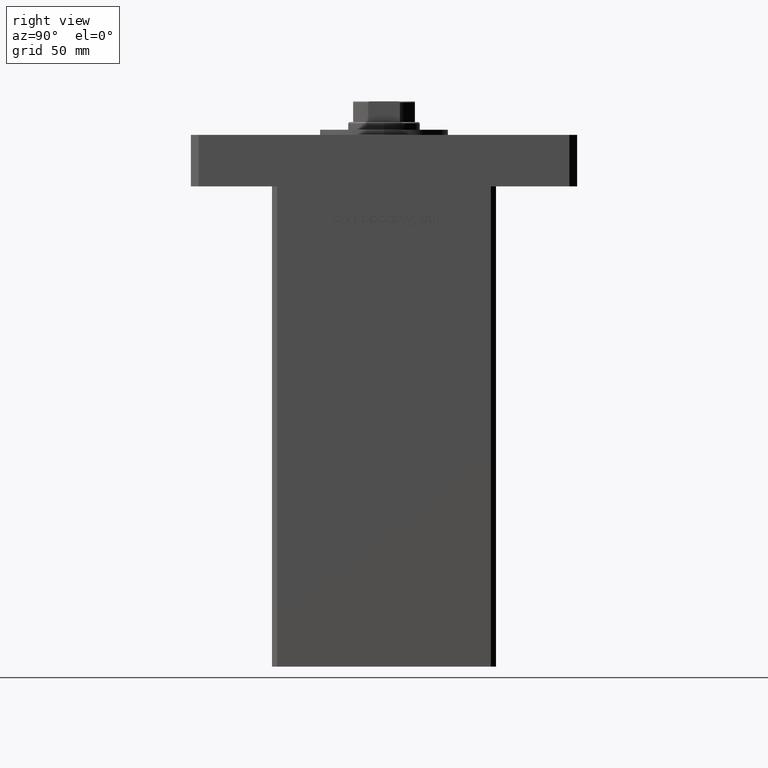
[diagram: clean part render]
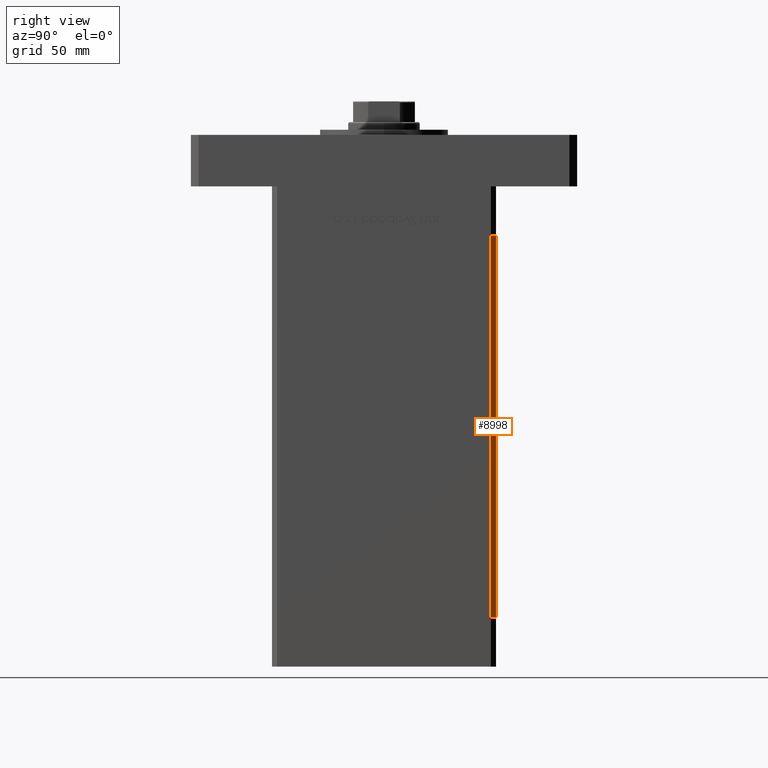
[diagram: same view with one face highlighted and labeled with its STEP entity id]
A machine part, right view. The second image highlights one B-rep face of the part: STEP entity #8998.
In plain terms, the highlighted planar face has unit normal (0.7071, 0.7071, 0).
Its self-contained STEP definition (entity closure, byte-faithful):
#75 = CARTESIAN_POINT ( 'NONE',  ( 50.00000000000001421, 41.49999999999999289, 148.5000000000000000 ) ) ;
#3199 = ORIENTED_EDGE ( 'NONE', *, *, #20905, .F. ) ;
#8738 = CARTESIAN_POINT ( 'NONE',  ( 48.00000000000000711, 43.50000000000000000, 148.5000000000000000 ) ) ;
#8998 = ADVANCED_FACE ( 'NONE', ( #25888 ), #42508, .T. ) ;
#10911 = LINE ( 'NONE', #35418, #34768 ) ;
#10965 = CARTESIAN_POINT ( 'NONE',  ( 48.00000000000000711, 43.50000000000000000, 148.5000000000000000 ) ) ;
#11369 = AXIS2_PLACEMENT_3D ( 'NONE', #8738, #13354, #22072 ) ;
#12395 = DIRECTION ( 'NONE',  ( -0.000000000000000000, -0.000000000000000000, -1.000000000000000000 ) ) ;
#13354 = DIRECTION ( 'NONE',  ( 0.7071067811865463515, 0.7071067811865487940, -0.000000000000000000 ) ) ;
#13764 = LINE ( 'NONE', #10965, #21267 ) ;
#14915 = ORIENTED_EDGE ( 'NONE', *, *, #50926, .T. ) ;
#17265 = VECTOR ( 'NONE', #12395, 1000.000000000000000 ) ;
#18156 = VERTEX_POINT ( 'NONE', #49848 ) ;
#18601 = VECTOR ( 'NONE', #42201, 1000.000000000000000 ) ;
#20905 = EDGE_CURVE ( 'NONE', #45590, #43915, #13764, .T. ) ;
#21267 = VECTOR ( 'NONE', #21664, 1000.000000000000000 ) ;
#21650 = CARTESIAN_POINT ( 'NONE',  ( 48.00000000000000711, 43.50000000000000000, 0.000000000000000000 ) ) ;
#21664 = DIRECTION ( 'NONE',  ( -0.000000000000000000, -0.000000000000000000, -1.000000000000000000 ) ) ;
#22072 = DIRECTION ( 'NONE',  ( -0.7071067811865487940, 0.7071067811865463515, 0.000000000000000000 ) ) ;
#23855 = CARTESIAN_POINT ( 'NONE',  ( 50.00000000000001421, 41.49999999999999289, 148.5000000000000000 ) ) ;
#25888 = FACE_OUTER_BOUND ( 'NONE', #48396, .T. ) ;
#31662 = VERTEX_POINT ( 'NONE', #75 ) ;
#32745 = CARTESIAN_POINT ( 'NONE',  ( 48.00000000000000711, 43.50000000000000000, 148.5000000000000000 ) ) ;
#33796 = EDGE_CURVE ( 'NONE', #43915, #18156, #50118, .T. ) ;
#34768 = VECTOR ( 'NONE', #51259, 1000.000000000000000 ) ;
#35418 = CARTESIAN_POINT ( 'NONE',  ( 48.00000000000000711, 43.50000000000000000, 148.5000000000000000 ) ) ;
#38076 = ORIENTED_EDGE ( 'NONE', *, *, #33796, .F. ) ;
#41937 = CARTESIAN_POINT ( 'NONE',  ( 48.00000000000000711, 43.50000000000000000, 0.000000000000000000 ) ) ;
#42201 = DIRECTION ( 'NONE',  ( 0.7071067811865487940, -0.7071067811865463515, 0.000000000000000000 ) ) ;
#42508 = PLANE ( 'NONE',  #11369 ) ;
#43915 = VERTEX_POINT ( 'NONE', #21650 ) ;
#45590 = VERTEX_POINT ( 'NONE', #32745 ) ;
#48396 = EDGE_LOOP ( 'NONE', ( #38076, #3199, #49831, #14915 ) ) ;
#48942 = LINE ( 'NONE', #23855, #17265 ) ;
#49831 = ORIENTED_EDGE ( 'NONE', *, *, #53530, .T. ) ;
#49848 = CARTESIAN_POINT ( 'NONE',  ( 50.00000000000001421, 41.49999999999999289, 0.000000000000000000 ) ) ;
#50118 = LINE ( 'NONE', #41937, #18601 ) ;
#50926 = EDGE_CURVE ( 'NONE', #31662, #18156, #48942, .T. ) ;
#51259 = DIRECTION ( 'NONE',  ( 0.7071067811865487940, -0.7071067811865463515, 0.000000000000000000 ) ) ;
#53530 = EDGE_CURVE ( 'NONE', #45590, #31662, #10911, .T. ) ;